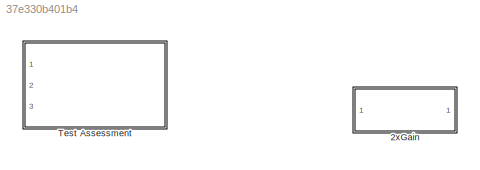
MODEL slx_37e330b401b4
KIND library
CONFIG AbsTol = auto
CONFIG FixedStep = auto
CONFIG MaxStep = auto
CONFIG MinStep = auto
CONFIG RelTol = 1e-3
CONFIG SampleTimeConstraint = Unconstrained
CONFIG Solver = VariableStepAuto
CONFIG SolverMode = Auto
CONFIG SolverName = VariableStepAuto
CONFIG StartTime = 0.0
CONFIG StopTime = 10.0
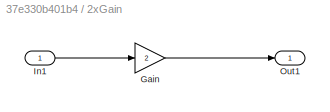
BLOCK [SubSystem] 2xGain
  Ports = [1, 1]
  RequestExecContextInheritance = off
BLOCK [Gain] 2xGain/Gain
  Gain = 2
  OutDataTypeStr = Inherit: Inherit via internal rule
  ParamDataTypeStr = Inherit: Inherit via internal rule
  SaturateOnIntegerOverflow = off
BLOCK [Inport] 2xGain/In1
  IconDisplay = Port number
BLOCK [Outport] 2xGain/Out1
  IconDisplay = Port number
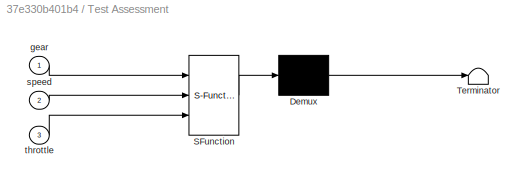
BLOCK [SubSystem] Test Assessment
  ErrorFcn = Stateflow.Translate.translate
  PermitHierarchicalResolution = ExplicitOnly
  Ports = [3]
  RequestExecContextInheritance = off
  SFBlockType = State Transition Table
  TreatAsAtomicUnit = on
BLOCK [Demux] Test Assessment/ Demux 
  Outputs = 1
  Ports = [1, 1]
BLOCK [S-Function] Test Assessment/ SFunction 
  EnableBusSupport = on
  FunctionName = sf_sfun
  PortCounts = [3 1]
  Ports = [3, 1]
  Tag = Stateflow S-Function AssessmentLibrary 1
BLOCK [Terminator] Test Assessment/ Terminator 
BLOCK [Inport] Test Assessment/gear
  IconDisplay = Port number
BLOCK [Inport] Test Assessment/speed
  IconDisplay = Port number
  Port = 2
BLOCK [Inport] Test Assessment/throttle
  IconDisplay = Port number
  Port = 3
LINE 2xGain/Gain:1 -> 2xGain/Out1:1
LINE 2xGain/In1:1 -> 2xGain/Gain:1
CHART Test Assessment states=1 transitions=1
  STATE_LABEL 'AssertConditions\n\nassert(speed >= 0);\nassert(throttle >= 0);\nassert(throttle <= 100);\nassert(gear > 0);'
